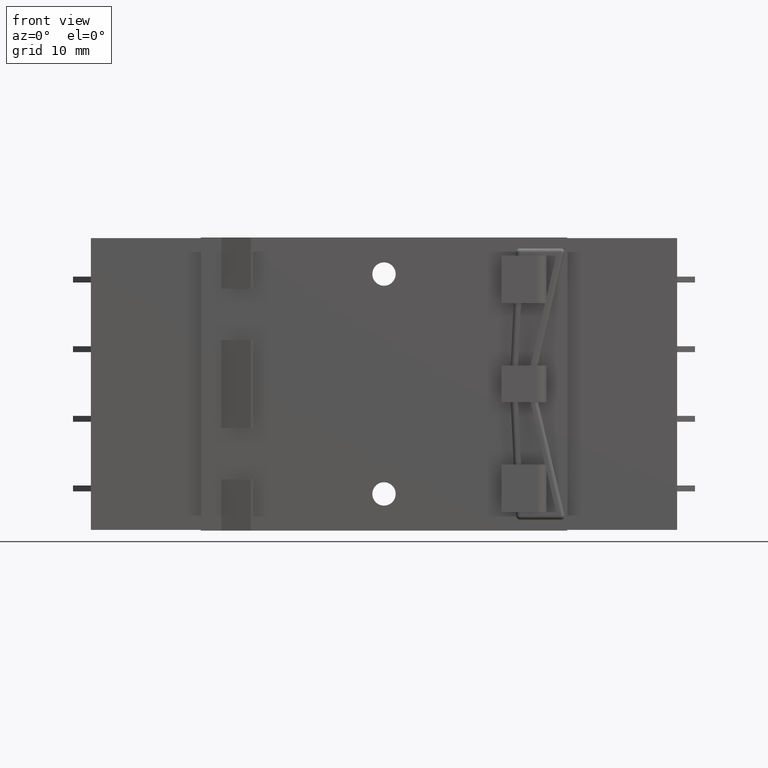
[diagram: clean part render]
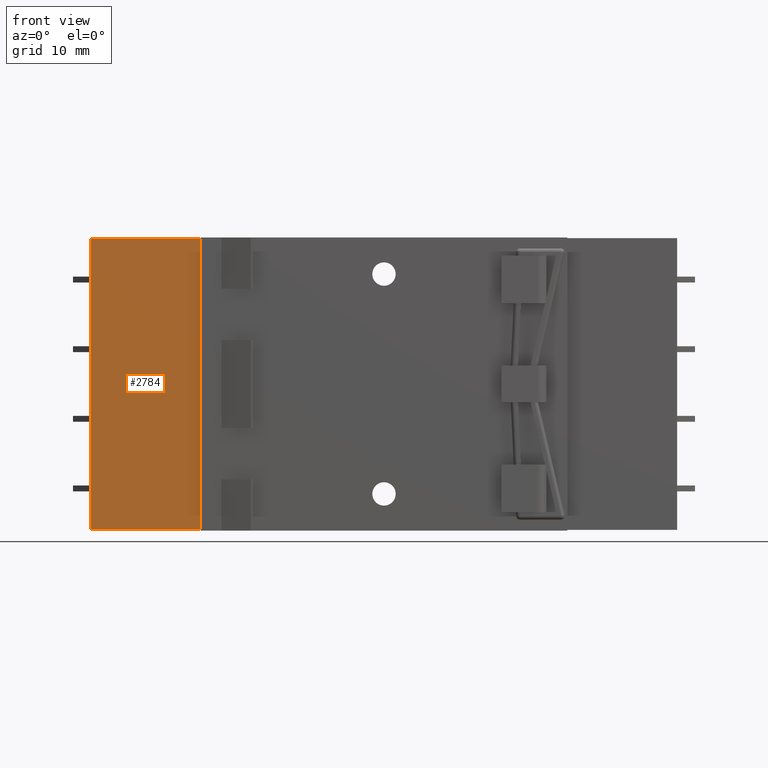
[diagram: same view with one face highlighted and labeled with its STEP entity id]
A machine part, front view. The second image highlights one B-rep face of the part: STEP entity #2784.
In plain terms, the highlighted planar face has unit normal (0, -1, 0).
Its self-contained STEP definition (entity closure, byte-faithful):
#131=CARTESIAN_POINT('',(-24.999999999999112,-1.376677E-013,0.0));
#132=VERTEX_POINT('',#131);
#201=CARTESIAN_POINT('',(-24.999999999999133,-1.376677E-013,-39.799999999999997));
#202=VERTEX_POINT('',#201);
#2690=CARTESIAN_POINT('',(-24.999999999999066,-3.469447E-016,-39.799999999999997));
#2691=DIRECTION('',(0.0,0.0,1.0));
#2692=VECTOR('',#2691,39.799999999999997);
#2693=LINE('',#2690,#2692);
#2694=EDGE_CURVE('',#202,#132,#2693,.T.);
#2754=CARTESIAN_POINT('',(-40.0,-4.898587E-015,0.0));
#2755=DIRECTION('',(0.0,-1.0,0.0));
#2756=DIRECTION('',(0.0,0.0,-1.0));
#2757=AXIS2_PLACEMENT_3D('',#2754,#2755,#2756);
#2758=PLANE('',#2757);
#2759=ORIENTED_EDGE('',*,*,#2694,.T.);
#2760=CARTESIAN_POINT('',(-40.0,-4.898587E-015,0.0));
#2761=VERTEX_POINT('',#2760);
#2762=CARTESIAN_POINT('',(-24.999999999999119,-3.061617E-016,0.0));
#2763=DIRECTION('',(-1.0,0.0,0.0));
#2764=VECTOR('',#2763,15.000000000000881);
#2765=LINE('',#2762,#2764);
#2766=EDGE_CURVE('',#132,#2761,#2765,.T.);
#2767=ORIENTED_EDGE('',*,*,#2766,.T.);
#2768=CARTESIAN_POINT('',(-40.0,-4.898587E-015,-39.799999999999997));
#2769=VERTEX_POINT('',#2768);
#2770=CARTESIAN_POINT('',(-40.0,-4.898587E-015,0.0));
#2771=DIRECTION('',(0.0,0.0,-1.0));
#2772=VECTOR('',#2771,39.799999999999997);
#2773=LINE('',#2770,#2772);
#2774=EDGE_CURVE('',#2761,#2769,#2773,.T.);
#2775=ORIENTED_EDGE('',*,*,#2774,.T.);
#2776=CARTESIAN_POINT('',(-40.0,-4.898587E-015,-39.799999999999997));
#2777=DIRECTION('',(1.0,0.0,0.0));
#2778=VECTOR('',#2777,15.000000000000867);
#2779=LINE('',#2776,#2778);
#2780=EDGE_CURVE('',#2769,#202,#2779,.T.);
#2781=ORIENTED_EDGE('',*,*,#2780,.T.);
#2782=EDGE_LOOP('',(#2759,#2767,#2775,#2781));
#2783=FACE_OUTER_BOUND('',#2782,.T.);
#2784=ADVANCED_FACE('',(#2783),#2758,.T.);